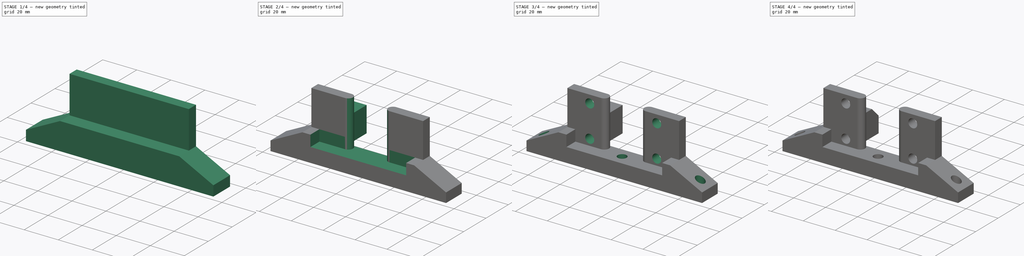
[diagram: build sequence overview — one tinted view per stage of 4, left to right]
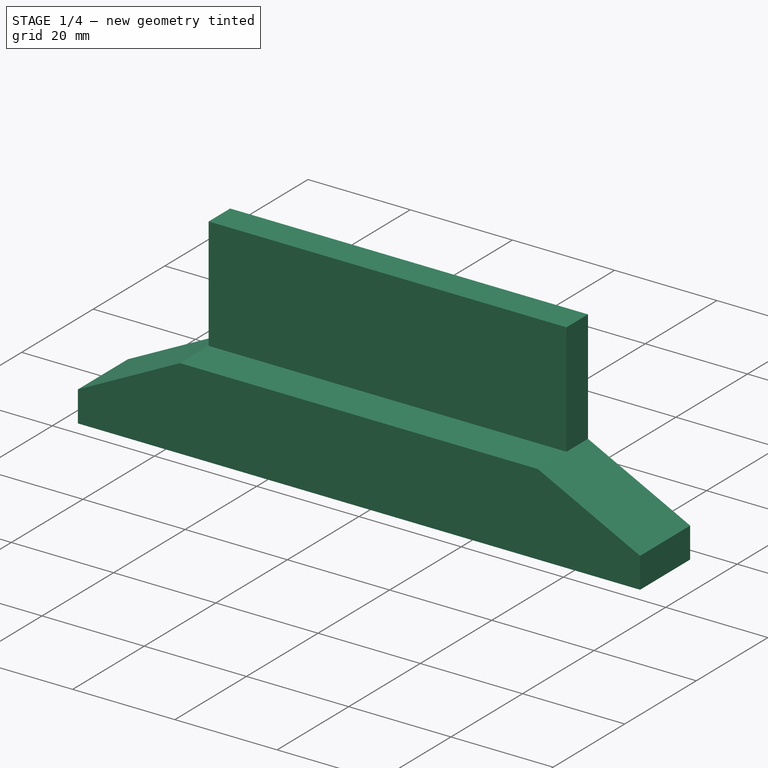
[diagram: stage 1 of 4 — iso view after this stage's code; geometry added in this stage tinted green]
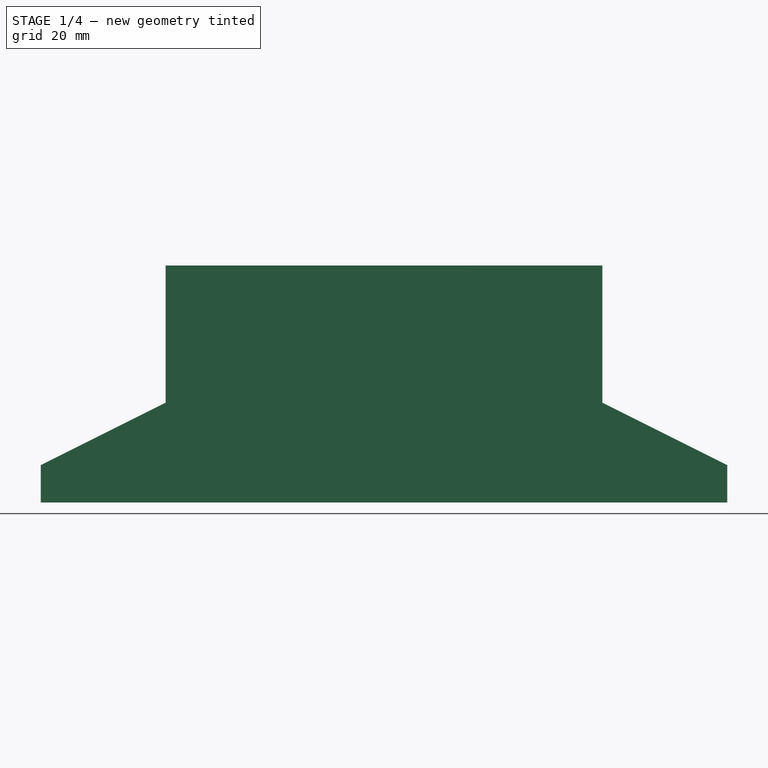
[diagram: stage 1 of 4 — front view after this stage's code; geometry added in this stage tinted green]
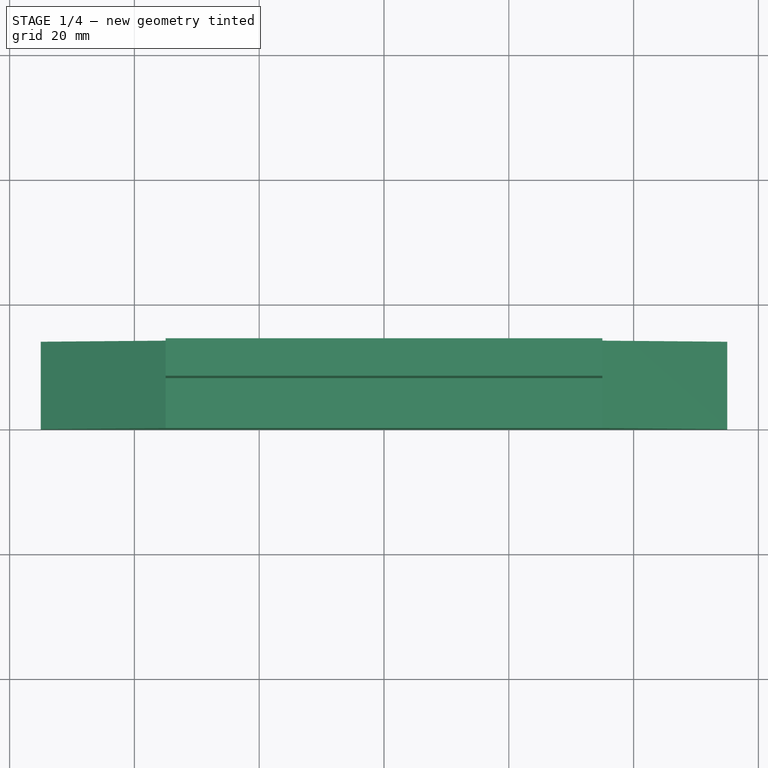
[diagram: stage 1 of 4 — top view after this stage's code; geometry added in this stage tinted green]
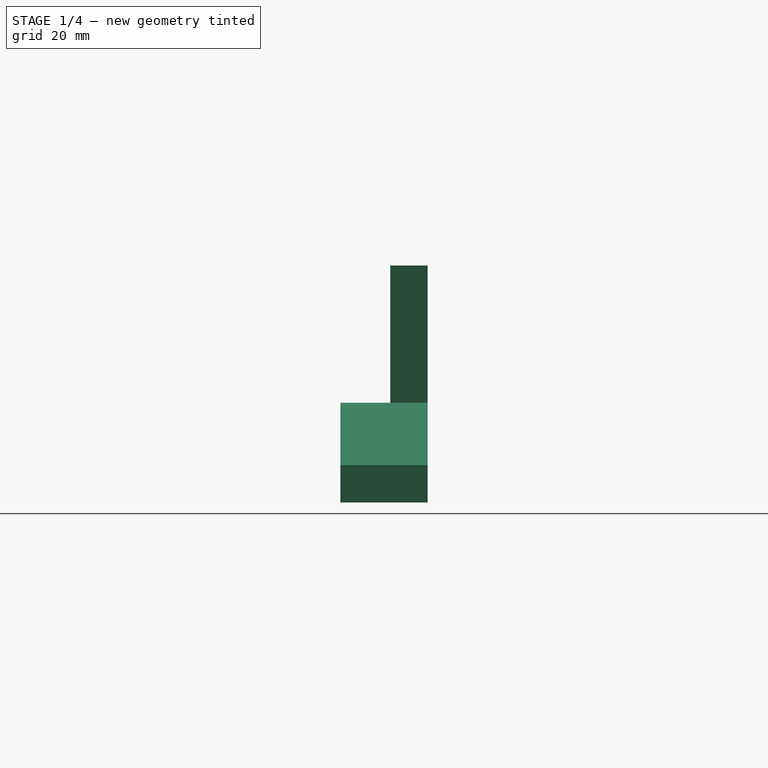
[diagram: stage 1 of 4 — right view after this stage's code; geometry added in this stage tinted green]
FCSTD DOCUMENT
Label: Y_BeltMount
objects: Sketcher::SketchObject×7, PartDesign::Pocket×5, PartDesign::Pad×2, PartDesign::Mirrored×1, PartDesign::Chamfer×1, Part::Feature×1
note: 24 computed .brp shape members not serialized (recipe doc carries the construction recipe); baked Part::Feature solids carry a one-line shape summary decoded from their .brp

FEATURE [Sketcher::SketchObject] Sketch
  Placement = pos=(0,0,0) rot=(1,0,0;1.5708rad)
  sketch-geometry (8):
    g0: LineSegment StartX=55 StartY=6 StartZ=0 EndX=55 EndY=0 EndZ=0
    g1: LineSegment StartX=55 StartY=0 StartZ=0 EndX=-55 EndY=0 EndZ=0
    g2: LineSegment StartX=-55 StartY=0 StartZ=0 EndX=-55 EndY=6 EndZ=0
    g3: LineSegment StartX=-55 StartY=6 StartZ=0 EndX=-35 EndY=16 EndZ=0
    g4: LineSegment StartX=35 StartY=16 StartZ=0 EndX=55 EndY=6 EndZ=0
    g5: LineSegment StartX=35 StartY=16 StartZ=0 EndX=35 EndY=38 EndZ=0
    g6: LineSegment StartX=35 StartY=38 StartZ=0 EndX=-35 EndY=38 EndZ=0
    g7: LineSegment StartX=-35 StartY=38 StartZ=0 EndX=-35 EndY=16 EndZ=0
  constraints (23):
    c: Coincident(g0,g1)
    c: Coincident(g1,g2)
    c: Horizontal(g1)
    c: Vertical(g0)
    c: Vertical(g2)
    c: DistanceX(g1) = -110
    c: Coincident(g2,g3)
    c: Coincident(g0,g4)
    c: Equal(g2,g0)
    c: DistanceY(g0) = -6
    c: DistanceY(g4,g0) = -16
    c: DistanceX(g0,g4) = -20
    c: Equal(g3,g4)
    c: Symmetric(g3,g4,g-2)
    c: PointOnObject(g1,g-1)
    c: Coincident(g5,g6)
    c: Coincident(g6,g7)
    c: Horizontal(g6)
    c: Vertical(g5)
    c: Vertical(g7)
    c: Coincident(g7,g3)
    c: Coincident(g5,g4)
    c: DistanceY(g5,g0) = -38
FEATURE [PartDesign::Pad] Pad
  Length = 14
  Length2 = 100
  Placement = pos=(0,0,0) rot=(1,0,0;1.5708rad)
  Reversed = true
  Sketch = -> Sketch
  Type = 0
FEATURE [Sketcher::SketchObject] Sketch002  label="Sketch001"
  ExternalGeometry = -> [Pad]
  Placement = pos=(35,0,0) rot=(0.707107,0,0.707107;3.14159rad)
  Support = -> Pad [Face6]
  sketch-geometry (4):
    g0: LineSegment StartX=16 StartY=-8 StartZ=0 EndX=39 EndY=-8 EndZ=0
    g1: LineSegment StartX=39 StartY=1 StartZ=0 EndX=16 EndY=1 EndZ=0
    g2: LineSegment StartX=16 StartY=1 StartZ=0 EndX=16 EndY=-8 EndZ=0
    g3: LineSegment StartX=39 StartY=1 StartZ=0 EndX=39 EndY=-8 EndZ=0
  constraints (12):
    c: Coincident(g1,g2)
    c: Coincident(g2,g0)
    c: Horizontal(g0)
    c: Horizontal(g1)
    c: Vertical(g2)
    c: Coincident(g3,g1)
    c: Coincident(g3,g0)
    c: Vertical(g3)
    c: DistanceY(g0,g-4) = -6
    c: PointOnObject(g0,g-4)
    c: DistanceX(g-3,g1) = 1
    c: DistanceY(g1,g-3) = -1
FEATURE [PartDesign::Pocket] Pocket
  Length = 5
  Placement = pos=(0,0,0) rot=(1,0,0;1.5708rad)
  Sketch = -> Sketch002
  Type = 1
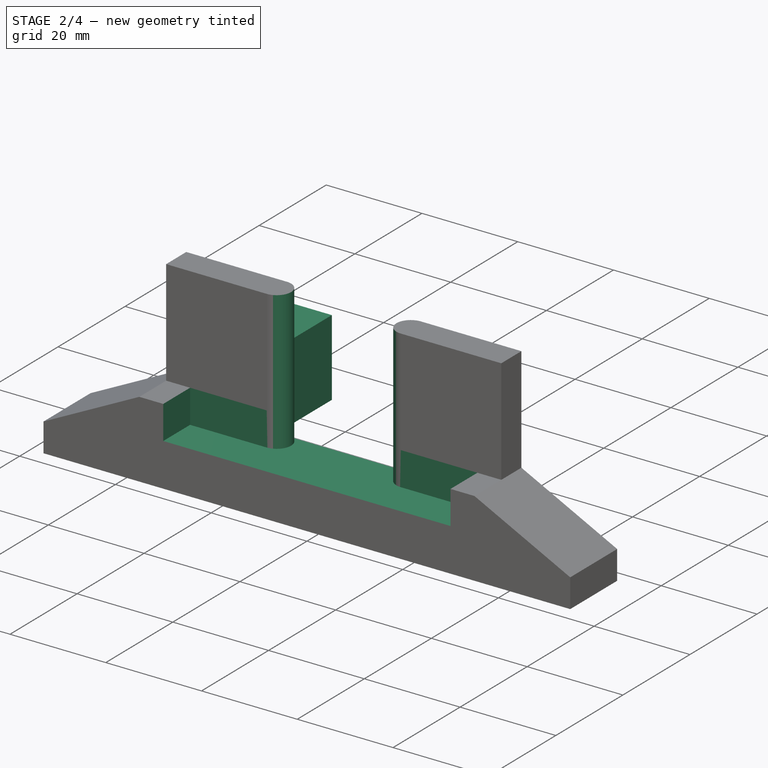
[diagram: stage 2 of 4 — iso view after this stage's code; geometry added in this stage tinted green]
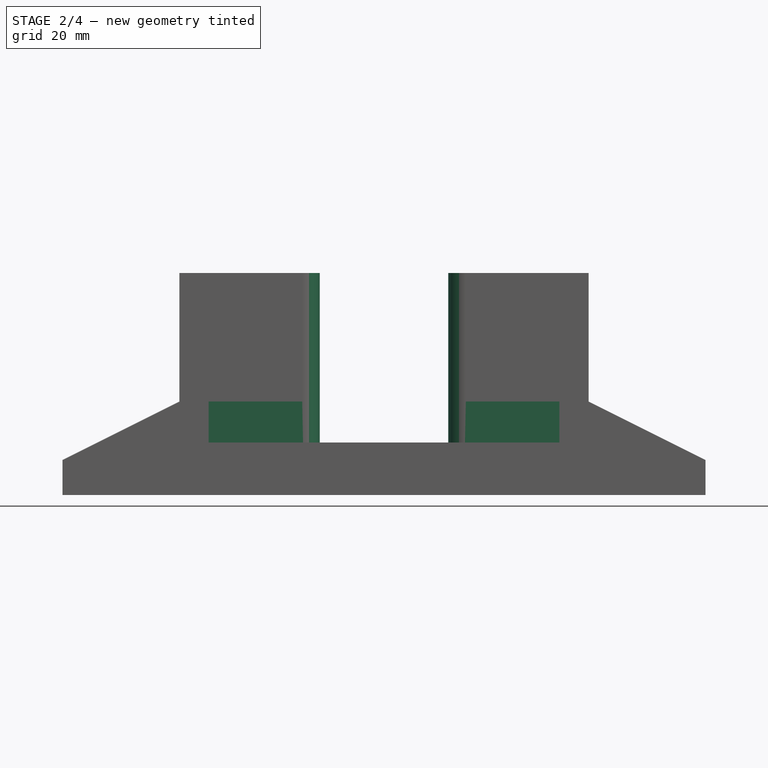
[diagram: stage 2 of 4 — front view after this stage's code; geometry added in this stage tinted green]
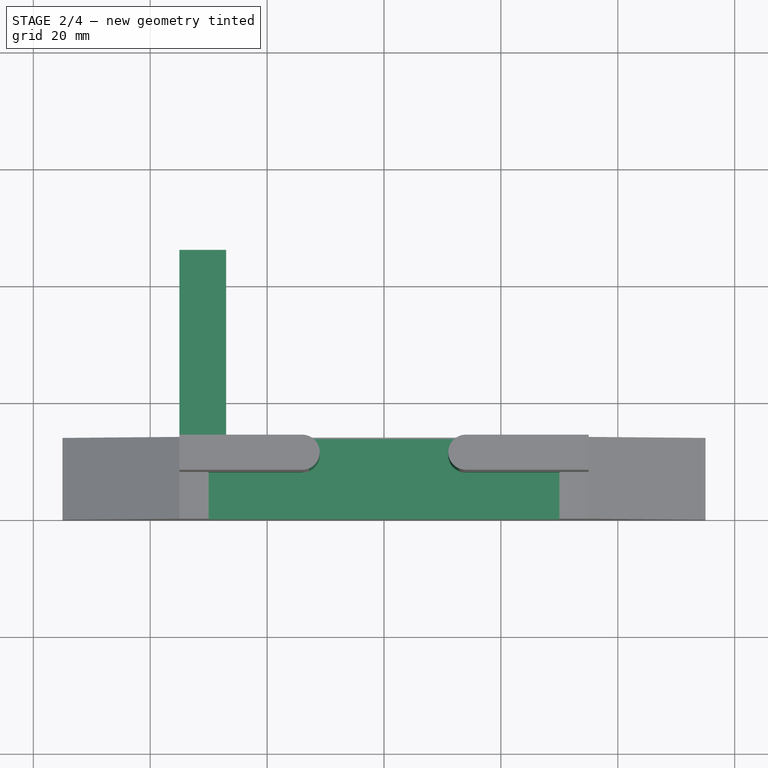
[diagram: stage 2 of 4 — top view after this stage's code; geometry added in this stage tinted green]
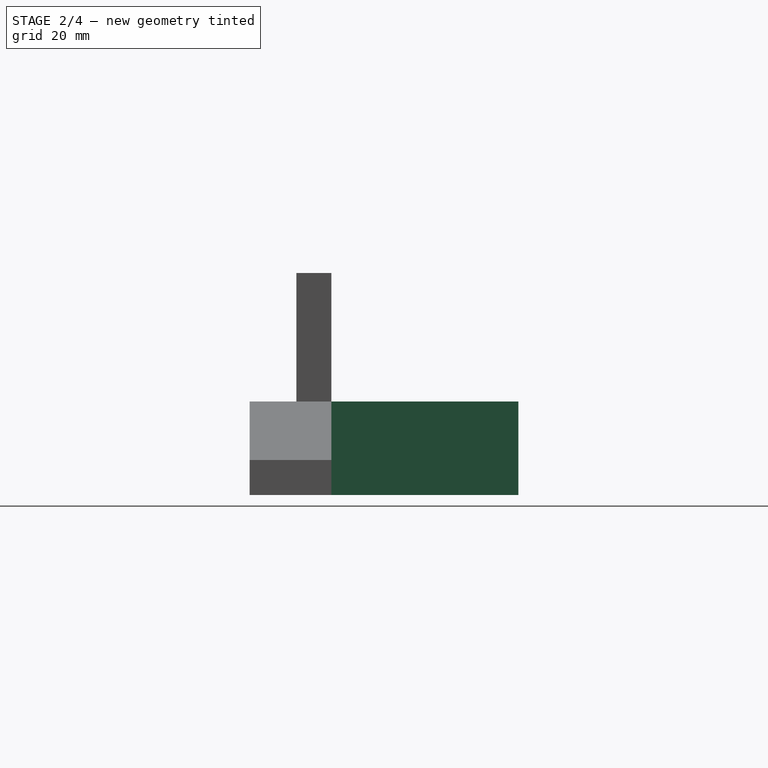
[diagram: stage 2 of 4 — right view after this stage's code; geometry added in this stage tinted green]
FEATURE [Sketcher::SketchObject] Sketch003
  ExternalGeometry = -> [Pocket]
  Placement = pos=(0,0,38) rot=(0,0,1;3.14159rad)
  Support = -> Pocket [Face10]
  sketch-geometry (8):
    g0: LineSegment StartX=-30 StartY=-8 StartZ=0 EndX=-14 EndY=-8 EndZ=0
    g1: LineSegment StartX=30 StartY=-8 StartZ=0 EndX=30 EndY=1 EndZ=0
    g2: LineSegment StartX=30 StartY=1 StartZ=0 EndX=-30 EndY=1 EndZ=0
    g3: LineSegment StartX=-30 StartY=1 StartZ=0 EndX=-30 EndY=-8 EndZ=0
    g4: ArcOfCircle CenterX=-14 CenterY=-11 CenterZ=0 NormalX=0 NormalY=0 NormalZ=1 Radius=3 StartAngle=4.71239 EndAngle=7.85398
    g5: ArcOfCircle CenterX=14 CenterY=-11 CenterZ=0 NormalX=0 NormalY=0 NormalZ=1 Radius=3 StartAngle=1.5708 EndAngle=4.71239
    g6: LineSegment StartX=-14 StartY=-14 StartZ=0 EndX=14 EndY=-14 EndZ=0
    g7: LineSegment StartX=14 StartY=-8 StartZ=0 EndX=30 EndY=-8 EndZ=0
  constraints (25):
    c: Coincident(g7,g1)
    c: Coincident(g1,g2)
    c: Coincident(g2,g3)
    c: Coincident(g3,g0)
    c: Horizontal(g0)
    c: Horizontal(g2)
    c: Vertical(g1)
    c: Vertical(g3)
    c: Tangent(g5,g0)
    c: Tangent(g4,g0)
    c: Equal(g4,g5)
    c: Coincident(g6,g4)
    c: Coincident(g6,g5)
    c: Horizontal(g6)
    c: Tangent(g6,g4)
    c: Coincident(g0,g4)
    c: Coincident(g7,g5)
    c: Tangent(g0,g7)
    c: Equal(g0,g7)
    c: Symmetric(g2,g1,g-2)
    c: DistanceX(g-3,g2) = 5
    c: PointOnObject(g-3,g0)
    c: DistanceX(g4,g-3) = -21
    c: PointOnObject(g4,g-4)
    c: DistanceY(g2,g-3) = -1
FEATURE [PartDesign::Pocket] Pocket001
  Length = 29
  Placement = pos=(0,0,0) rot=(1,0,0;1.5708rad)
  Sketch = -> Sketch003
  Type = 0
FEATURE [Sketcher::SketchObject] Sketch004
  ExternalGeometry = -> [Pocket001]
  Placement = pos=(0,14,0) rot=(-1,0,0;1.5708rad)
  Support = -> Pocket001 [Face5]
  sketch-geometry (4):
    g0: LineSegment StartX=-35 StartY=0 StartZ=0 EndX=-27 EndY=0 EndZ=0
    g1: LineSegment StartX=-27 StartY=0 StartZ=0 EndX=-27 EndY=-16 EndZ=0
    g2: LineSegment StartX=-27 StartY=-16 StartZ=0 EndX=-35 EndY=-16 EndZ=0
    g3: LineSegment StartX=-35 StartY=-16 StartZ=0 EndX=-35 EndY=0 EndZ=0
  constraints (11):
    c: Coincident(g0,g1)
    c: Coincident(g1,g2)
    c: Coincident(g2,g3)
    c: Coincident(g3,g0)
    c: Horizontal(g0)
    c: Horizontal(g2)
    c: Vertical(g1)
    c: Vertical(g3)
    c: DistanceX(g0) = 8
    c: PointOnObject(g0,g-1)
    c: Coincident(g2,g-3)
FEATURE [PartDesign::Pad] Pad001
  Length = 32
  Length2 = 100
  Placement = pos=(0,0,0) rot=(1,0,0;1.5708rad)
  Sketch = -> Sketch004
  Type = 0
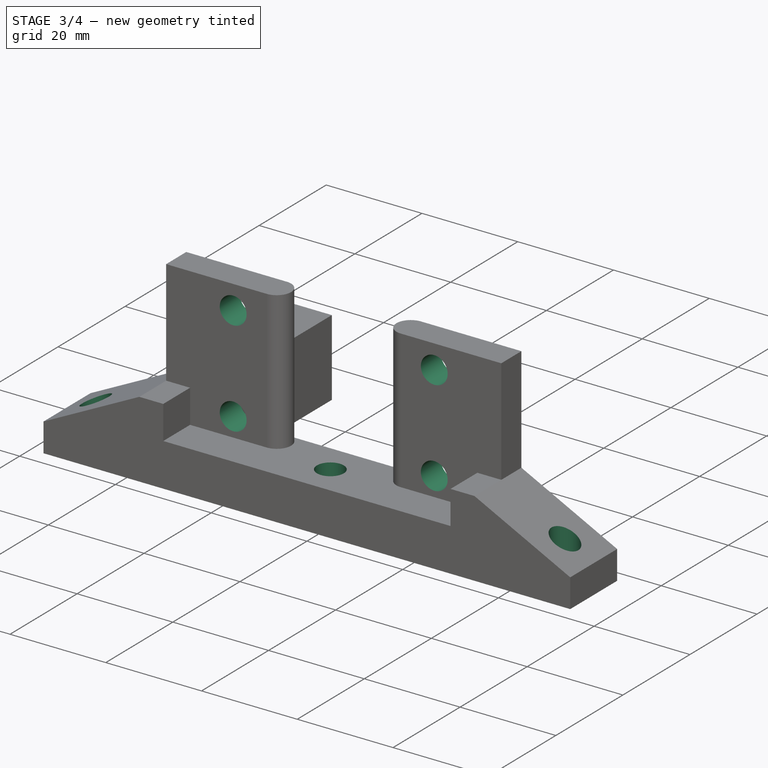
[diagram: stage 3 of 4 — iso view after this stage's code; geometry added in this stage tinted green]
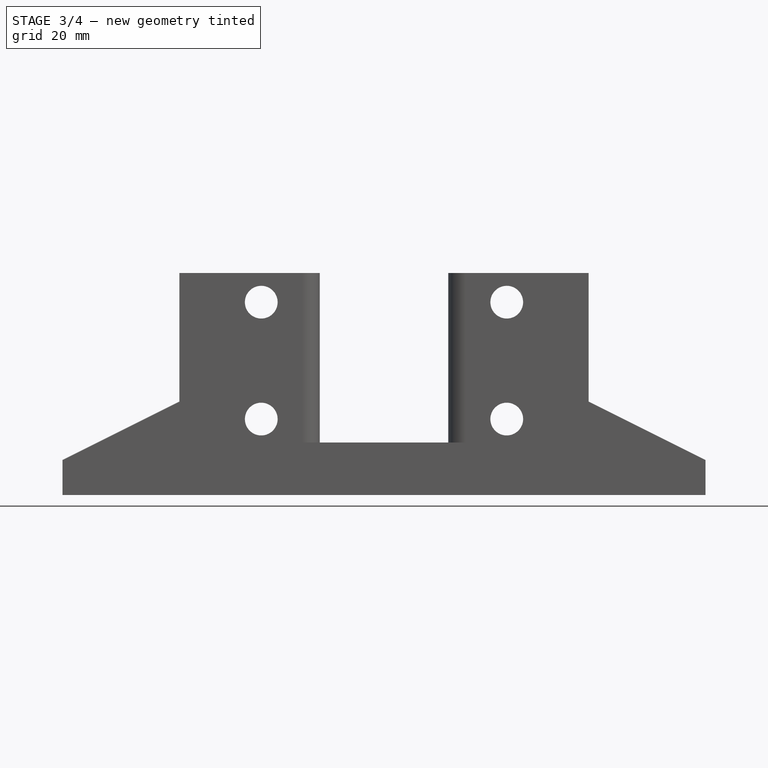
[diagram: stage 3 of 4 — front view after this stage's code; geometry added in this stage tinted green]
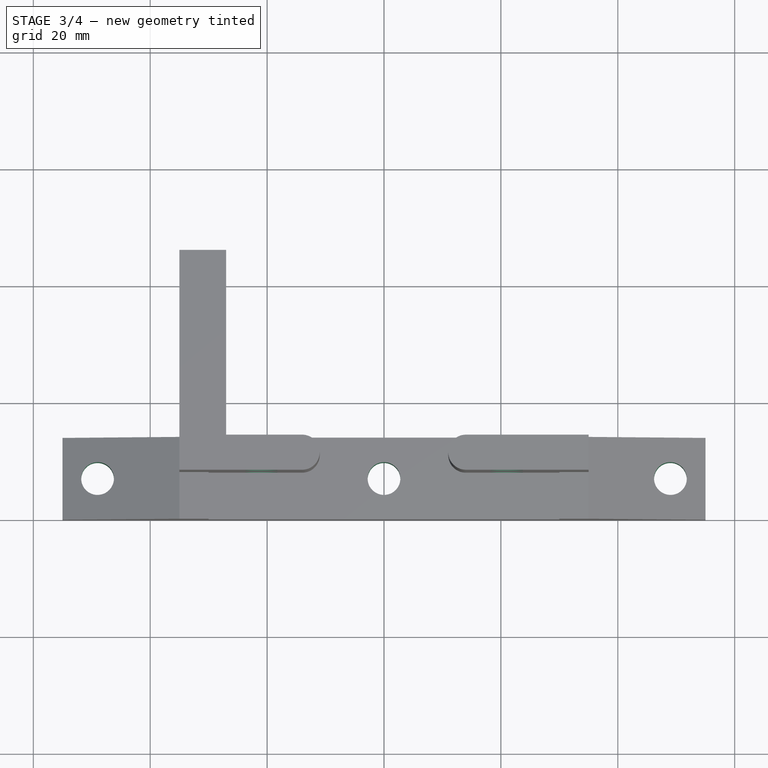
[diagram: stage 3 of 4 — top view after this stage's code; geometry added in this stage tinted green]
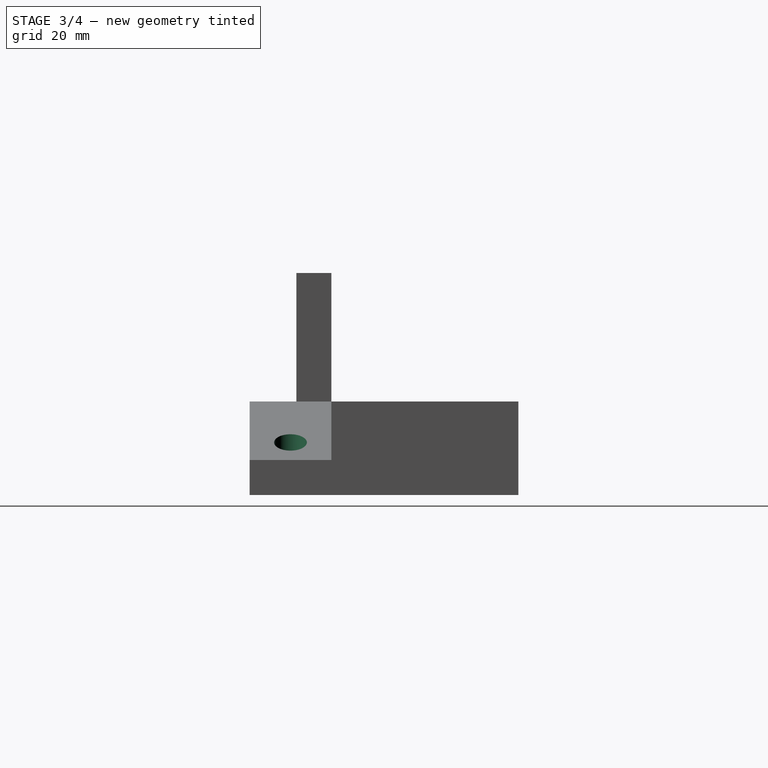
[diagram: stage 3 of 4 — right view after this stage's code; geometry added in this stage tinted green]
FEATURE [Sketcher::SketchObject] Sketch005
  ExternalGeometry = -> [Pad001]
  Placement = pos=(0,14,0) rot=(-1,0,0;1.5708rad)
  Support = -> Pad001 [Face5]
  sketch-geometry (3):
    g0: Circle CenterX=21 CenterY=-33 CenterZ=0 NormalX=0 NormalY=0 NormalZ=1 Radius=2.8
    g1: LineSegment [constr] StartX=21 StartY=-33 StartZ=0 EndX=21 EndY=-13 EndZ=0
    g2: Circle CenterX=21 CenterY=-13 CenterZ=0 NormalX=0 NormalY=0 NormalZ=1 Radius=2.8
  constraints (8):
    c: Coincident(g1,g0)
    c: Vertical(g1)
    c: Coincident(g2,g1)
    c: Equal(g2,g0)
    c: Radius(g0) = 2.8
    c: DistanceY(g1) = 20
    c: DistanceX(g0,g-3) = 14
    c: DistanceY(g0,g-3) = -5
FEATURE [PartDesign::Pocket] Pocket002
  Length = 5
  Placement = pos=(0,0,0) rot=(1,0,0;1.5708rad)
  Sketch = -> Sketch005
  Type = 1
FEATURE [PartDesign::Mirrored] Mirrored
  Originals = -> [Pocket002]
  Placement = pos=(0,0,0) rot=(1,0,0;1.5708rad)
  StdMirrorPlane = YZ
FEATURE [Sketcher::SketchObject] Sketch006
  ExternalGeometry = -> [Mirrored]
  Placement = pos=(0,0,0) rot=(1,0,0;3.14159rad)
  Support = -> Mirrored [Face3]
  sketch-geometry (6):
    g0: Circle CenterX=0 CenterY=-7 CenterZ=0 NormalX=0 NormalY=0 NormalZ=1 Radius=2.8
    g1: LineSegment [constr] StartX=0 StartY=0 StartZ=0 EndX=0 EndY=-14 EndZ=0
    g2: LineSegment [constr] StartX=0 StartY=-7 StartZ=0 EndX=-49 EndY=-7 EndZ=0
    g3: LineSegment [constr] StartX=0 StartY=-7 StartZ=0 EndX=49 EndY=-7 EndZ=0
    g4: Circle CenterX=-49 CenterY=-7 CenterZ=0 NormalX=0 NormalY=0 NormalZ=1 Radius=2.8
    g5: Circle CenterX=49 CenterY=-7 CenterZ=0 NormalX=0 NormalY=0 NormalZ=1 Radius=2.8
  constraints (15):
    c: Radius(g0) = 2.8
    c: Coincident(g1,g-1)
    c: Vertical(g1)
    c: Symmetric(g-1,g1,g0)
    c: Coincident(g2,g0)
    c: Horizontal(g2)
    c: Coincident(g3,g0)
    c: Horizontal(g3)
    c: Equal(g2,g3)
    c: Coincident(g4,g2)
    c: Coincident(g5,g3)
    c: Equal(g5,g0)
    c: Equal(g0,g4)
    c: DistanceX(g2,g3) = 98
    c: PointOnObject(g1,g-3)
FEATURE [PartDesign::Pocket] Pocket003
  Length = 5
  Placement = pos=(0,0,0) rot=(1,0,0;1.5708rad)
  Sketch = -> Sketch006
  Type = 1
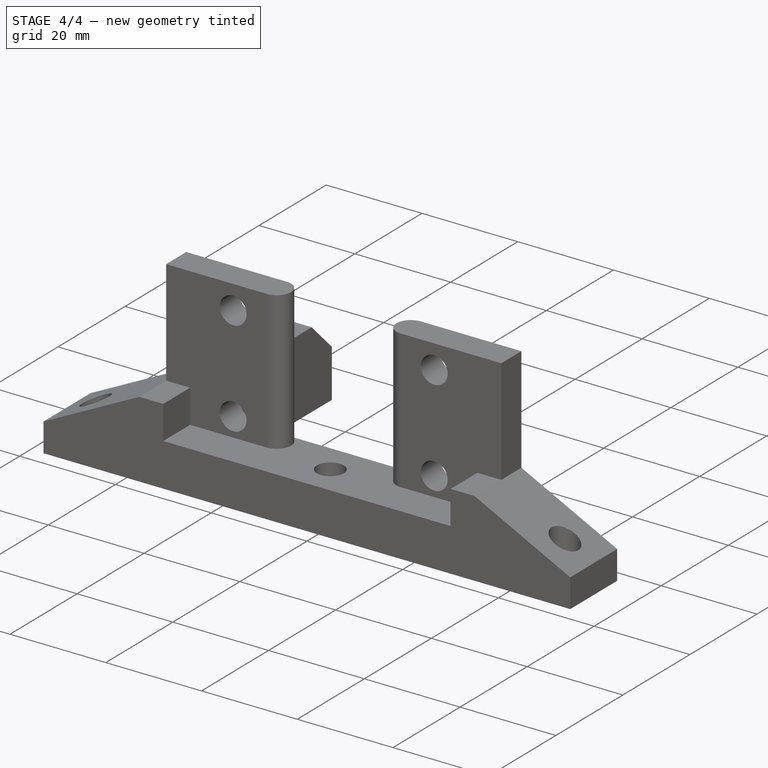
[diagram: stage 4 of 4 — iso view after this stage's code; geometry added in this stage tinted green]
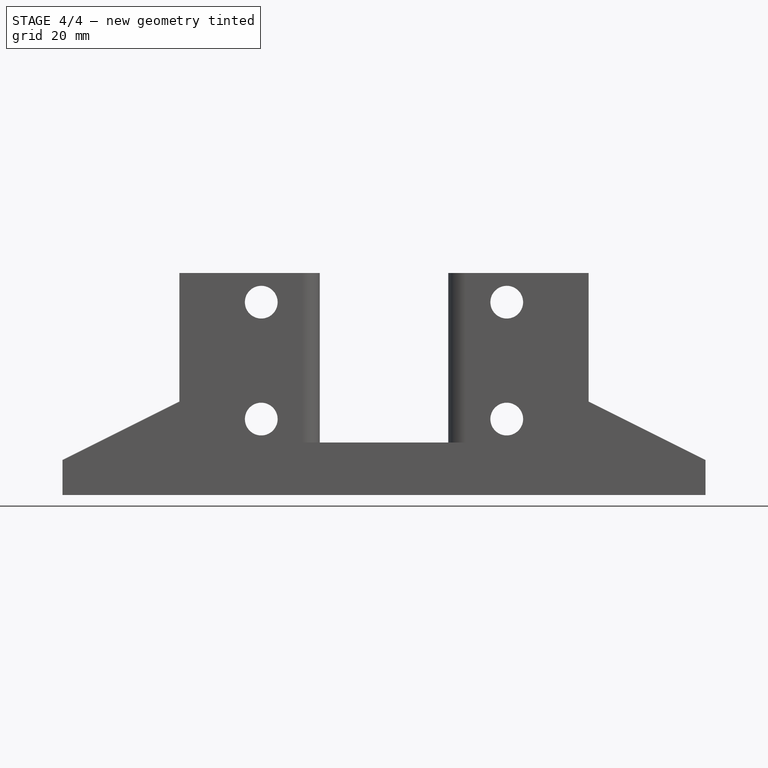
[diagram: stage 4 of 4 — front view after this stage's code; geometry added in this stage tinted green]
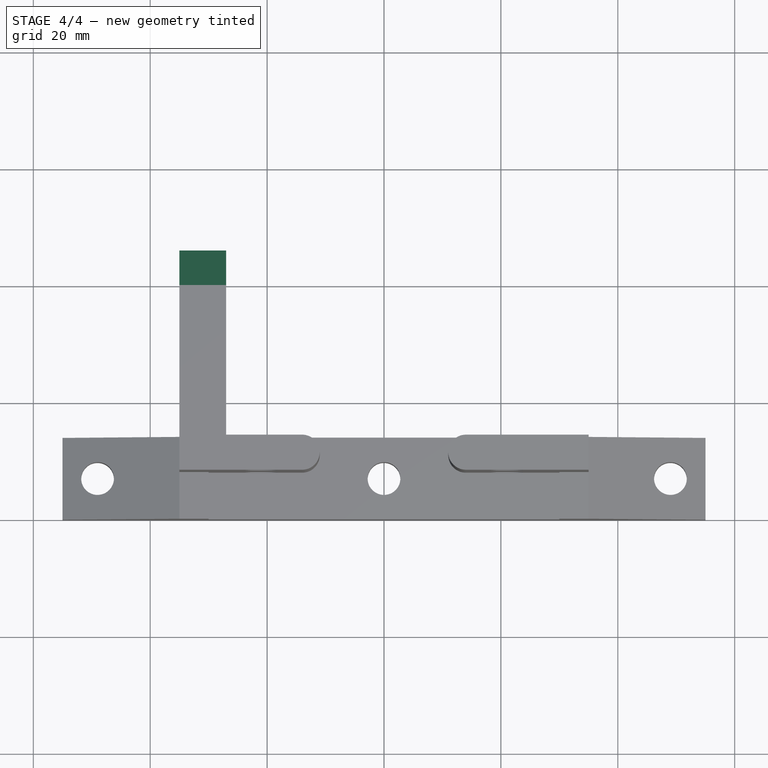
[diagram: stage 4 of 4 — top view after this stage's code; geometry added in this stage tinted green]
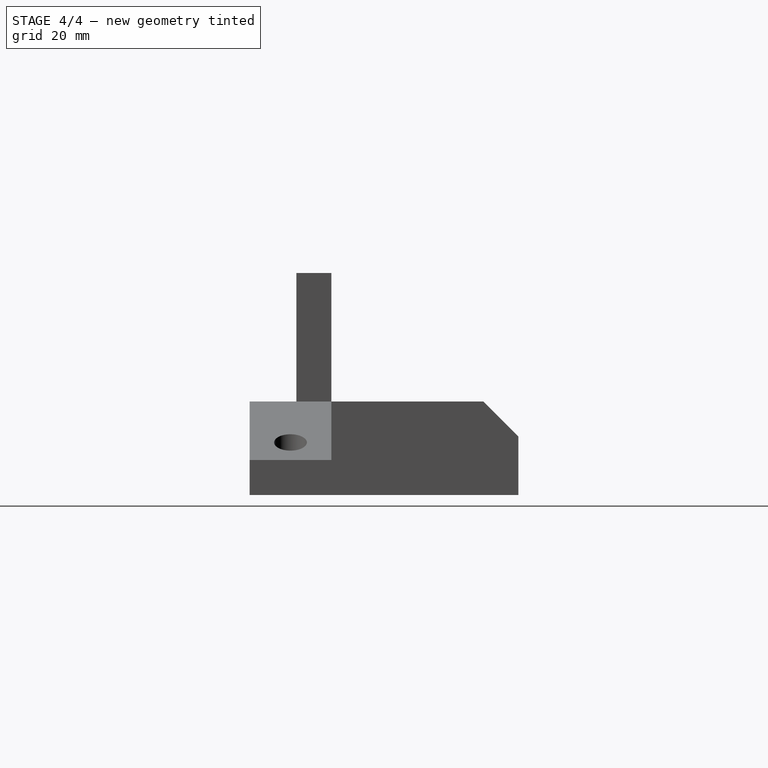
[diagram: stage 4 of 4 — right view after this stage's code; geometry added in this stage tinted green]
FEATURE [Sketcher::SketchObject] Sketch007
  ExternalGeometry = -> [Pocket003]
  Placement = pos=(0,0,0) rot=(1,0,0;3.14159rad)
  Support = -> Pocket003 [Face10]
  sketch-geometry (2):
    g0: Circle CenterX=-31 CenterY=-40 CenterZ=0 NormalX=0 NormalY=0 NormalZ=1 Radius=2.8
    g1: LineSegment [constr] StartX=-31 StartY=-40 StartZ=0 EndX=-31 EndY=-46 EndZ=0
  constraints (5):
    c: Coincident(g1,g0)
    c: Vertical(g1)
    c: Symmetric(g-3,g-3,g1)
    c: Equal(g-4,g0)
    c: DistanceY(g1) = -6
FEATURE [PartDesign::Pocket] Pocket004
  Length = 6
  Placement = pos=(0,0,0) rot=(1,0,0;1.5708rad)
  Sketch = -> Sketch007
  Type = 0
FEATURE [PartDesign::Chamfer] Chamfer
  Base = -> Pocket004 [Edge81]
  Placement = pos=(0,0,0) rot=(1,0,0;1.5708rad)
  Size = 6
FEATURE [Part::Feature] Chamfer001  label="PartRefine"
  shape: bbox 110 x 46 x 38 mm, 35 faces (baked)
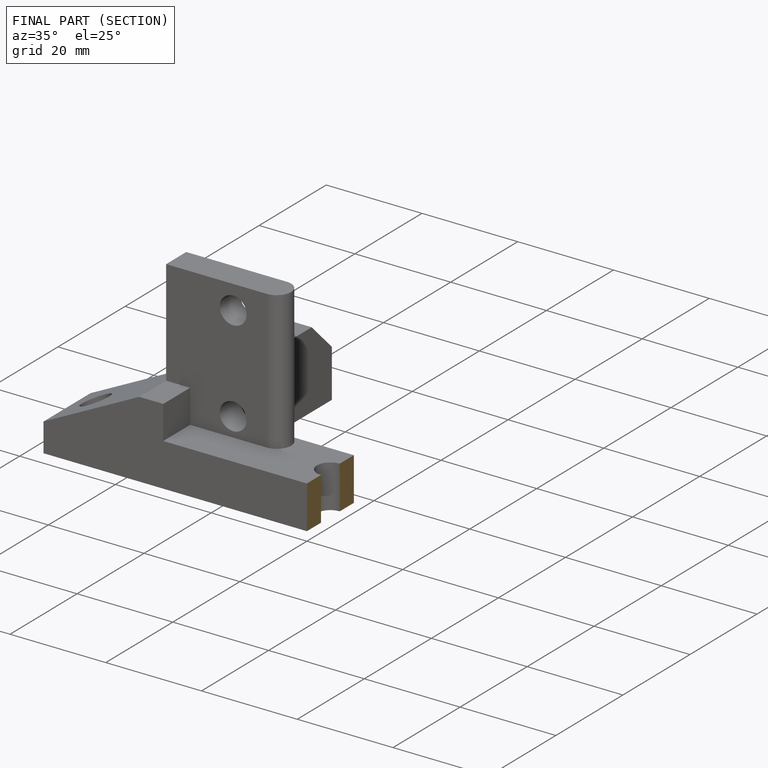
[diagram: finished part — half-section view (interior)]
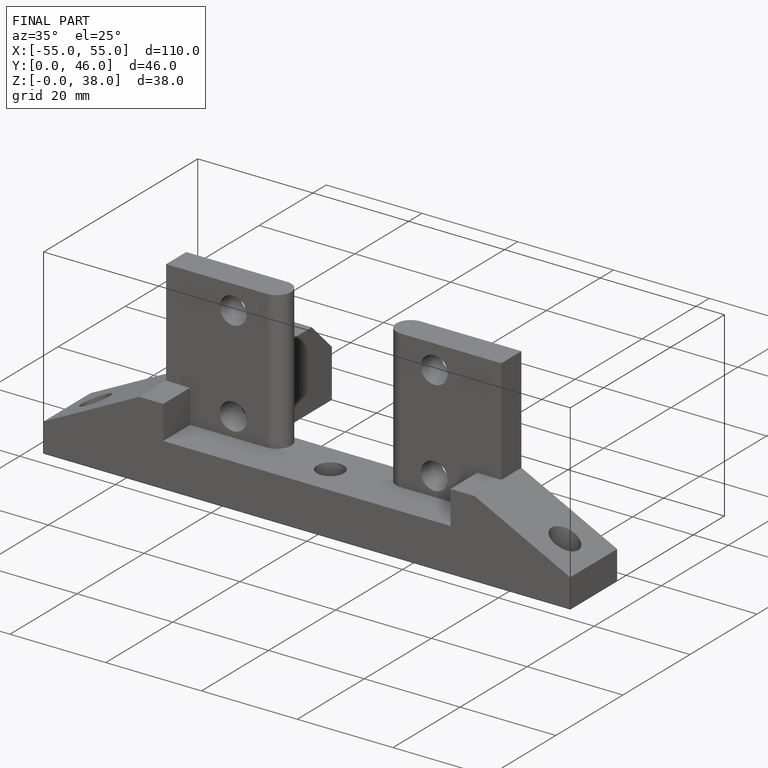
[diagram: finished part — iso view with bounding-box wireframe]
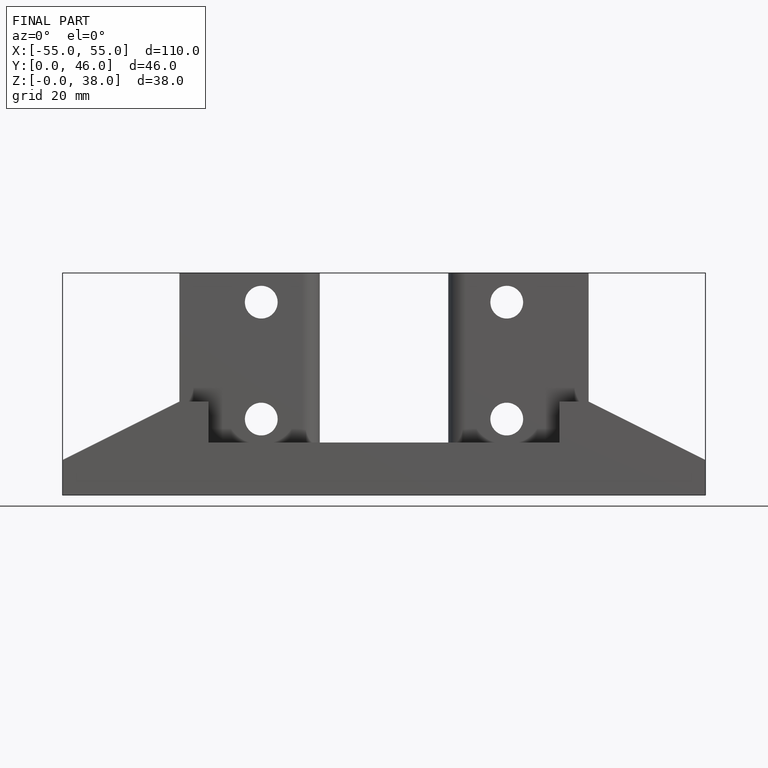
[diagram: finished part — front view with bounding-box wireframe]
